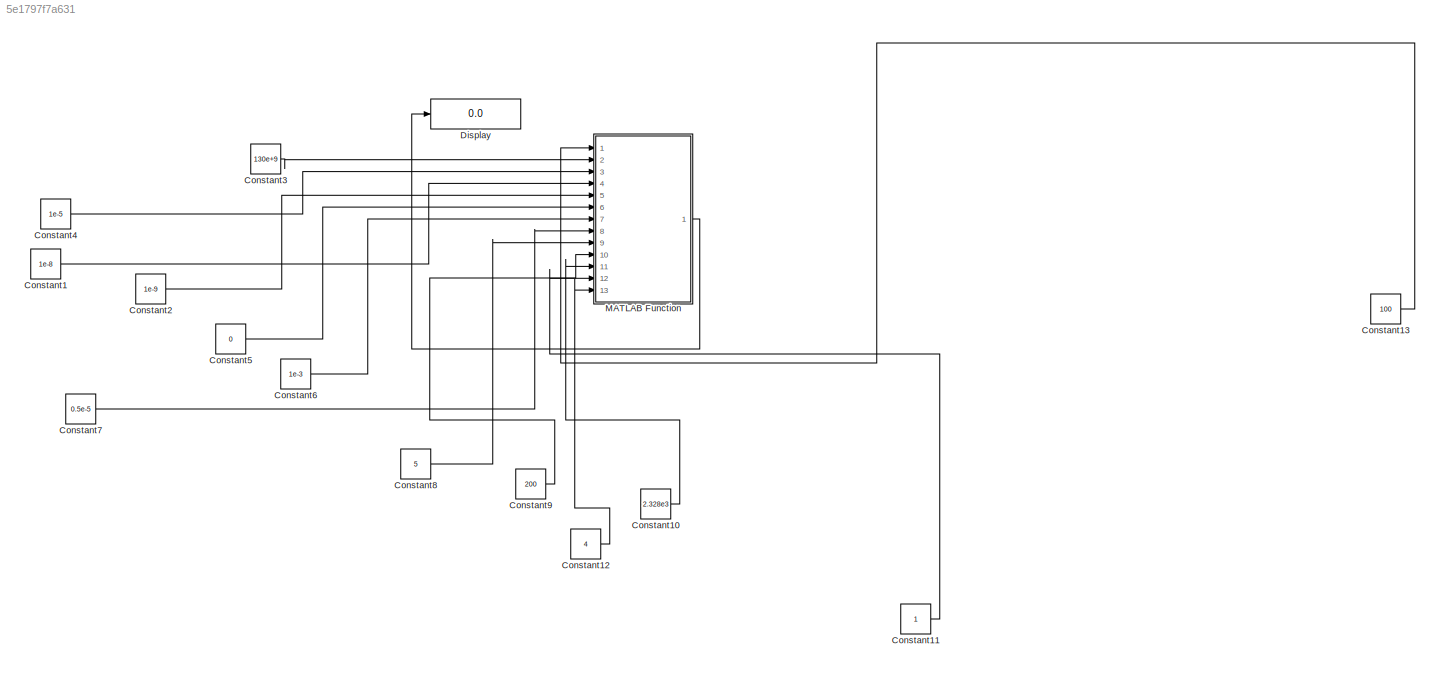
MODEL slx_5e1797f7a631
KIND model
CONFIG AbsTol = auto
CONFIG FixedStep = auto
CONFIG MaxStep = auto
CONFIG MinStep = auto
CONFIG RelTol = 1e-3
CONFIG SampleTimeConstraint = Unconstrained
CONFIG Solver = VariableStepAuto
CONFIG SolverMode = Auto
CONFIG SolverName = VariableStepAuto
CONFIG StartTime = 0.0
CONFIG StopTime = 10.0
BLOCK [Constant] Constant1
  Value = 1e-8
BLOCK [Constant] Constant10
  Value = 2.328e3
BLOCK [Constant] Constant11
BLOCK [Constant] Constant12
  Value = 4
BLOCK [Constant] Constant13
  Value = 100
BLOCK [Constant] Constant2
  Value = 1e-9
BLOCK [Constant] Constant3
  Value = 130e+9
BLOCK [Constant] Constant4
  Value = 1e-5
BLOCK [Constant] Constant5
  Value = 0
BLOCK [Constant] Constant6
  Value = 1e-3
BLOCK [Constant] Constant7
  Value = 0.5e-5
BLOCK [Constant] Constant8
  Value = 5
BLOCK [Constant] Constant9
  Value = 200
BLOCK [Display] Display
  Decimation = 1
  Ports = [1]
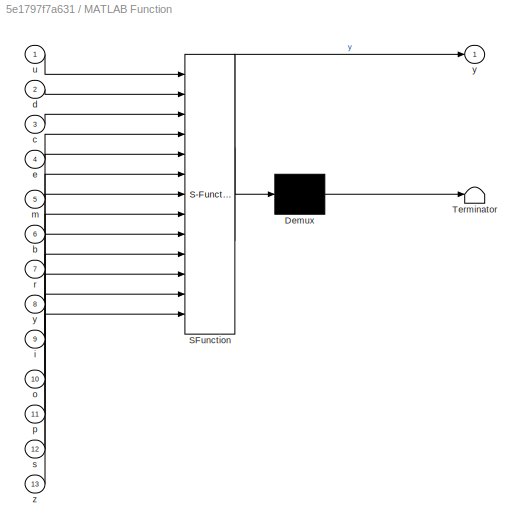
BLOCK [SubSystem] MATLAB Function
  ErrorFcn = Stateflow.Translate.translate
  PermitHierarchicalResolution = ExplicitOnly
  Ports = [13, 1]
  RequestExecContextInheritance = off
  SFBlockType = MATLAB Function
  TreatAsAtomicUnit = on
  Variant = off
BLOCK [Demux] MATLAB Function/ Demux 
  Outputs = 1
  Ports = [1, 1]
BLOCK [S-Function] MATLAB Function/ SFunction 
  EnableBusSupport = on
  FunctionName = sf_sfun
  PortCounts = [13 2]
  Ports = [13, 2]
  SFunctionDeploymentMode = off
  Tag = Stateflow S-Function simu 2
BLOCK [Terminator] MATLAB Function/ Terminator 
BLOCK [Inport] MATLAB Function/b
  IconDisplay = Port number
  Port = 6
BLOCK [Inport] MATLAB Function/c
  IconDisplay = Port number
  Port = 3
BLOCK [Inport] MATLAB Function/d
  IconDisplay = Port number
  Port = 2
BLOCK [Inport] MATLAB Function/e
  IconDisplay = Port number
  Port = 4
BLOCK [Inport] MATLAB Function/i
  IconDisplay = Port number
  Port = 9
BLOCK [Inport] MATLAB Function/m
  IconDisplay = Port number
  Port = 5
BLOCK [Inport] MATLAB Function/o
  IconDisplay = Port number
  Port = 10
BLOCK [Inport] MATLAB Function/p
  IconDisplay = Port number
  Port = 11
BLOCK [Inport] MATLAB Function/r
  IconDisplay = Port number
  Port = 7
BLOCK [Inport] MATLAB Function/s
  IconDisplay = Port number
  Port = 12
BLOCK [Inport] MATLAB Function/u
  IconDisplay = Port number
BLOCK [Outport] MATLAB Function/y
  IconDisplay = Port number
BLOCK [Inport] MATLAB Function/y 
  IconDisplay = Port number
  Port = 8
BLOCK [Inport] MATLAB Function/z
  IconDisplay = Port number
  Port = 13
LINE Constant10:1 -> MATLAB Function:11
LINE Constant11:1 -> MATLAB Function:12
LINE Constant12:1 -> MATLAB Function:13
LINE Constant13:1 -> MATLAB Function:1
LINE Constant1:1 -> MATLAB Function:4
LINE Constant2:1 -> MATLAB Function:5
LINE Constant3:1 -> MATLAB Function:2
LINE Constant4:1 -> MATLAB Function:3
LINE Constant5:1 -> MATLAB Function:6
LINE Constant6:1 -> MATLAB Function:7
LINE Constant7:1 -> MATLAB Function:8
LINE Constant8:1 -> MATLAB Function:9
LINE Constant9:1 -> MATLAB Function:10
LINE MATLAB Function:1 -> Display:1
CHART MATLAB Function states=1 transitions=1
  STATE_LABEL 'eML_blk_kernel()'
  STATE_LABEL "SCRIPT:\nfunction y = fcn(u,d,c,e,m,b,r,y,i,o,p,s,z)\n%#codegen\ny = 0.0;\ny = coder.ceval('viga',u,d,c,e,m);\n"
